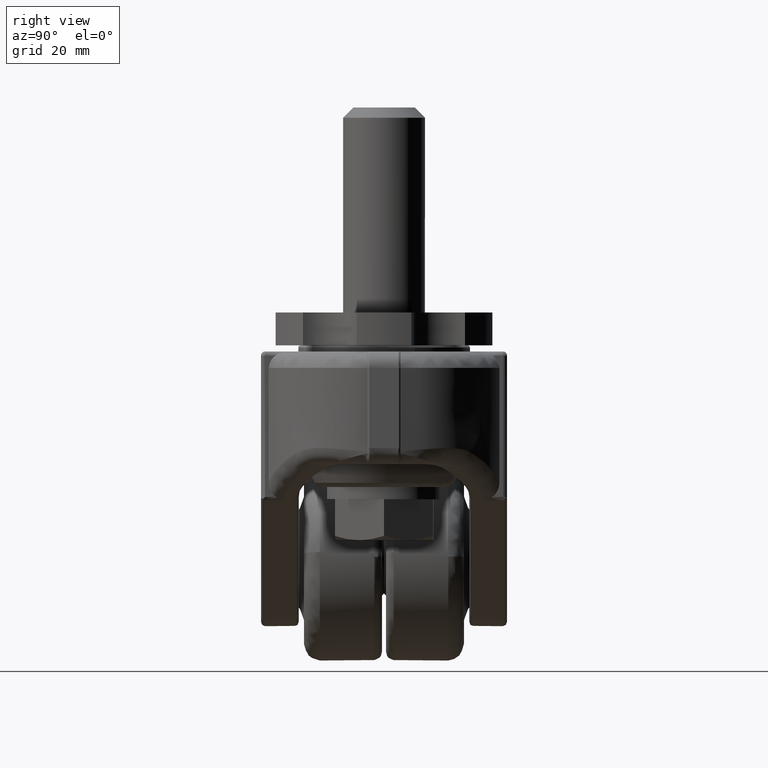
[diagram: clean part render]
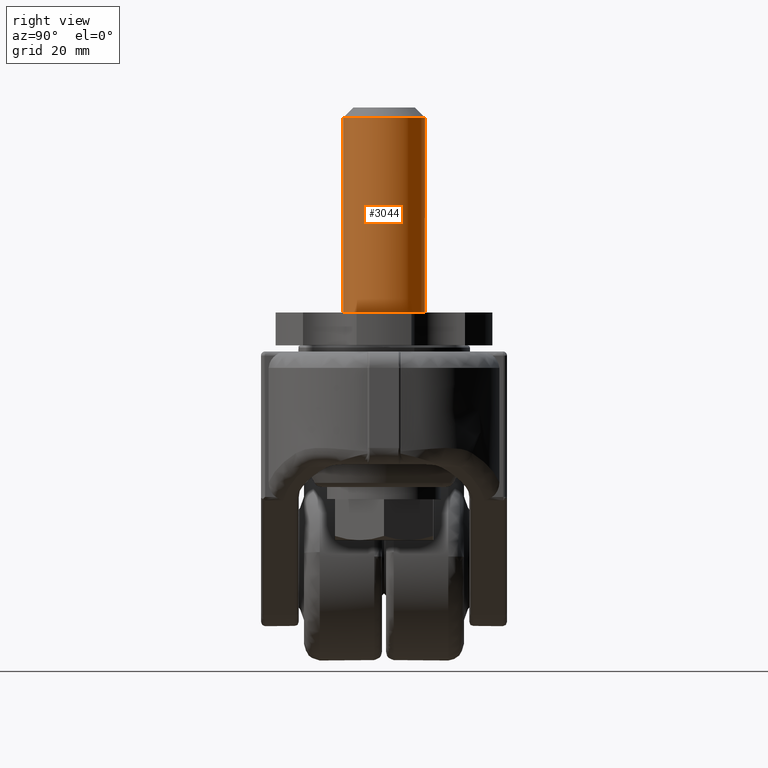
[diagram: same view with one face highlighted and labeled with its STEP entity id]
A machine part, right view. The second image highlights one B-rep face of the part: STEP entity #3044.
In plain terms, the highlighted face is a freeform B-spline surface patch.
Its self-contained STEP definition (entity closure, byte-faithful):
#2931=CARTESIAN_POINT('',(0.784590957278455,-9.969173337331275,1.812499999999998));
#2932=CARTESIAN_POINT('',(10.753764294609731,-9.184582380052820,1.812499999999998));
#2933=CARTESIAN_POINT('',(9.969173337331275,0.784590957278455,1.812499999999998));
#2934=CARTESIAN_POINT('',(9.184582380052820,10.753764294609731,1.812499999999998));
#2935=CARTESIAN_POINT('',(-0.784590957278455,9.969173337331275,1.812499999999998));
#2936=CARTESIAN_POINT('',(0.784590957278455,-9.969173337331275,51.717187500000009));
#2937=CARTESIAN_POINT('',(10.753764294609731,-9.184582380052820,51.717187500000001));
#2938=CARTESIAN_POINT('',(9.969173337331275,0.784590957278455,51.717187500000009));
#2939=CARTESIAN_POINT('',(9.184582380052820,10.753764294609731,51.717187500000001));
#2940=CARTESIAN_POINT('',(-0.784590957278455,9.969173337331275,51.717187500000009));
#2948=(BOUNDED_SURFACE()B_SPLINE_SURFACE(2,1,((#2931,#2936),(#2932,#2937),(#2933,#2938),(#2934,#2939),(#2935,#2940)),.UNSPECIFIED.,.F.,.F.,.U.)B_SPLINE_SURFACE_WITH_KNOTS((3,2,3),(2,2),(0.0,16.568542494923800,33.137084989847587),(0.0,49.904687500000023),.UNSPECIFIED.)GEOMETRIC_REPRESENTATION_ITEM()RATIONAL_B_SPLINE_SURFACE(((1.0,1.0),(0.707106781186548,0.707106781186548),(1.0,1.0),(0.707106781186548,0.707106781186548),(1.0,1.0)))REPRESENTATION_ITEM('')SURFACE());
#2949=CARTESIAN_POINT('',(10.0,0.0,50.500000000000000));
#2950=VERTEX_POINT('',#2949);
#2951=CARTESIAN_POINT('',(0.784583466291294,-9.969173926879090,50.500000000000021));
#2952=VERTEX_POINT('',#2951);
#2953=CARTESIAN_POINT('',(10.0,0.0,50.500000000000000));
#2954=CARTESIAN_POINT('',(10.0,-9.243911884072046,50.500000000000000));
#2955=CARTESIAN_POINT('',(0.784583466291294,-9.969173926879090,50.500000000000028));
#2963=(BOUNDED_CURVE()B_SPLINE_CURVE(2,(#2953,#2954,#2955),.UNSPECIFIED.,.F.,.U.)B_SPLINE_CURVE_WITH_KNOTS((3,3),(0.500000000000000,0.736331429443724),.UNSPECIFIED.)CURVE()GEOMETRIC_REPRESENTATION_ITEM()RATIONAL_B_SPLINE_CURVE((1.0,0.723120507693774,0.969723624990611))REPRESENTATION_ITEM(''));
#2964=EDGE_CURVE('',#2950,#2952,#2963,.T.);
#2965=ORIENTED_EDGE('',*,*,#2964,.T.);
#2966=CARTESIAN_POINT('',(0.784583558921376,-9.969173919589082,3.000000000000001));
#2967=VERTEX_POINT('',#2966);
#2968=CARTESIAN_POINT('',(0.784583558921376,-9.969173919589082,3.000000000000001));
#2969=CARTESIAN_POINT('',(0.784583466291294,-9.969173926879090,50.500000000000021));
#2970=QUASI_UNIFORM_CURVE('',1,(#2968,#2969),.UNSPECIFIED.,.F.,.U.);
#2971=EDGE_CURVE('',#2967,#2952,#2970,.T.);
#2972=ORIENTED_EDGE('',*,*,#2971,.F.);
#2973=CARTESIAN_POINT('',(10.0,0.0,3.0));
#2974=VERTEX_POINT('',#2973);
#2975=CARTESIAN_POINT('',(10.0,0.0,3.0));
#2976=CARTESIAN_POINT('',(10.0,-9.243911797915263,3.000000000000000));
#2977=CARTESIAN_POINT('',(0.784583558921376,-9.969173919589082,3.000000000000000));
#2985=(BOUNDED_CURVE()B_SPLINE_CURVE(2,(#2975,#2976,#2977),.UNSPECIFIED.,.F.,.U.)B_SPLINE_CURVE_WITH_KNOTS((3,3),(0.0,0.236331427850907),.UNSPECIFIED.)CURVE()GEOMETRIC_REPRESENTATION_ITEM()RATIONAL_B_SPLINE_CURVE((1.0,0.723120509559875,0.969723621666520))REPRESENTATION_ITEM(''));
#2986=EDGE_CURVE('',#2974,#2967,#2985,.T.);
#2987=ORIENTED_EDGE('',*,*,#2986,.F.);
#2988=CARTESIAN_POINT('',(-0.784583558921376,9.969173919589082,3.000000000000001));
#2989=VERTEX_POINT('',#2988);
#2990=CARTESIAN_POINT('',(-0.784583558921376,9.969173919589082,3.000000000000000));
#2991=CARTESIAN_POINT('',(-0.392897353731712,10.000000000000002,3.000000000000000));
#2992=CARTESIAN_POINT('',(0.0,10.0,3.0));
#2993=CARTESIAN_POINT('',(10.000000000000002,10.000000000000002,3.0));
#2994=CARTESIAN_POINT('',(10.0,0.0,3.0));
#3002=(BOUNDED_CURVE()B_SPLINE_CURVE(2,(#2990,#2991,#2992,#2993,#2994),.UNSPECIFIED.,.F.,.U.)B_SPLINE_CURVE_WITH_KNOTS((3,2,3),(0.736331427850907,0.750000000000000,1.0),.UNSPECIFIED.)CURVE()GEOMETRIC_REPRESENTATION_ITEM()RATIONAL_B_SPLINE_CURVE((0.969723621666520,0.983986271626673,1.0,0.707106781186548,1.0))REPRESENTATION_ITEM(''));
#3003=EDGE_CURVE('',#2989,#2974,#3002,.T.);
#3004=ORIENTED_EDGE('',*,*,#3003,.F.);
#3005=CARTESIAN_POINT('',(-0.784583466291295,9.969173926879090,50.500000000000007));
#3006=VERTEX_POINT('',#3005);
#3007=CARTESIAN_POINT('',(-0.784583558921376,9.969173919589082,3.000000000000001));
#3008=CARTESIAN_POINT('',(-0.784583466291295,9.969173926879090,50.500000000000007));
#3009=QUASI_UNIFORM_CURVE('',1,(#3007,#3008),.UNSPECIFIED.,.F.,.U.);
#3010=EDGE_CURVE('',#2989,#3006,#3009,.T.);
#3011=ORIENTED_EDGE('',*,*,#3010,.T.);
#3012=CARTESIAN_POINT('',(0.087265355586462,9.999619230718626,50.499999999917833));
#3013=VERTEX_POINT('',#3012);
#3014=CARTESIAN_POINT('',(-0.784583466291295,9.969173926879090,50.500000000000014));
#3015=CARTESIAN_POINT('',(-0.392897307201743,10.0,50.500000000000000));
#3016=CARTESIAN_POINT('',(0.0,10.0,50.500000000000000));
#3017=CARTESIAN_POINT('',(0.043633508809057,10.0,50.500000000000000));
#3018=CARTESIAN_POINT('',(0.087265355586462,9.999619230718626,50.499999999917840));
#3026=(BOUNDED_CURVE()B_SPLINE_CURVE(2,(#3014,#3015,#3016,#3017,#3018),.UNSPECIFIED.,.F.,.U.)B_SPLINE_CURVE_WITH_KNOTS((3,2,3),(0.236331429443724,0.250000000000000,0.251539894356196),.UNSPECIFIED.)CURVE()GEOMETRIC_REPRESENTATION_ITEM()RATIONAL_B_SPLINE_CURVE((0.969723624990611,0.983986273492774,1.0,0.998195901541525,0.996414028051323))REPRESENTATION_ITEM(''));
#3027=EDGE_CURVE('',#3006,#3013,#3026,.T.);
#3028=ORIENTED_EDGE('',*,*,#3027,.T.);
#3029=CARTESIAN_POINT('',(0.087265355586462,9.999619230718626,50.499999999917833));
#3030=CARTESIAN_POINT('',(10.0,9.913112104756142,50.499999999999986));
#3031=CARTESIAN_POINT('',(10.0,0.0,50.500000000000000));
#3039=(BOUNDED_CURVE()B_SPLINE_CURVE(2,(#3029,#3030,#3031),.UNSPECIFIED.,.F.,.U.)B_SPLINE_CURVE_WITH_KNOTS((3,3),(0.251539894356196,0.500000000000000),.UNSPECIFIED.)CURVE()GEOMETRIC_REPRESENTATION_ITEM()RATIONAL_B_SPLINE_CURVE((0.996414028051323,0.708910879645023,1.0))REPRESENTATION_ITEM(''));
#3040=EDGE_CURVE('',#3013,#2950,#3039,.T.);
#3041=ORIENTED_EDGE('',*,*,#3040,.T.);
#3042=EDGE_LOOP('',(#2965,#2972,#2987,#3004,#3011,#3028,#3041));
#3043=FACE_OUTER_BOUND('',#3042,.T.);
#3044=ADVANCED_FACE('',(#3043),#2948,.T.);